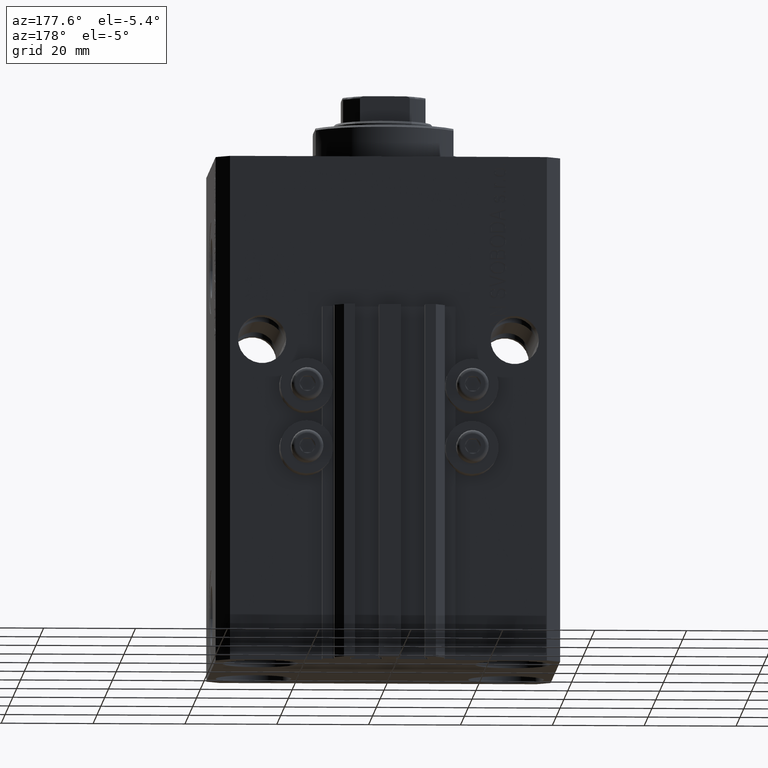
[diagram: clean part render]
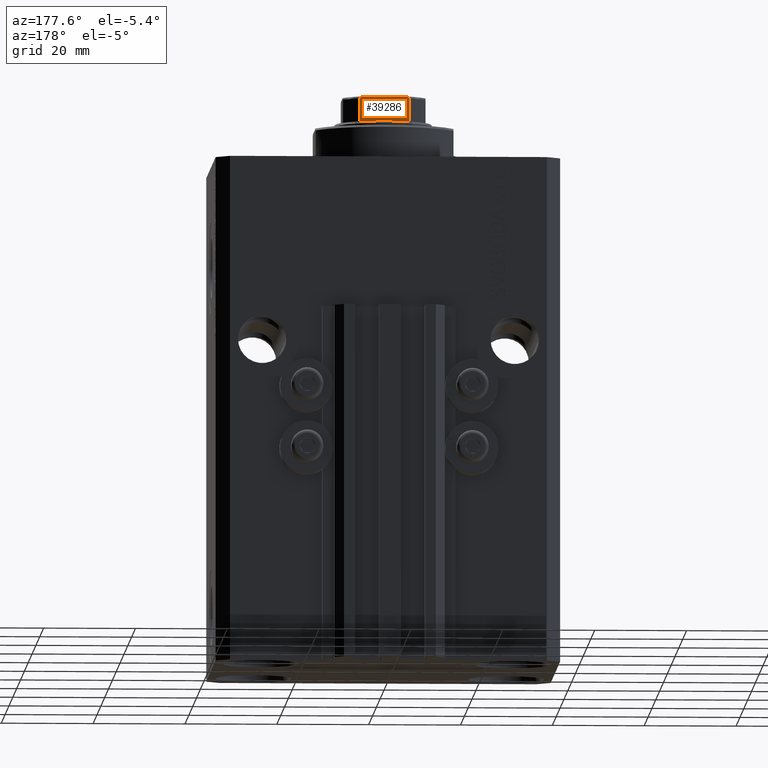
[diagram: same view with one face highlighted and labeled with its STEP entity id]
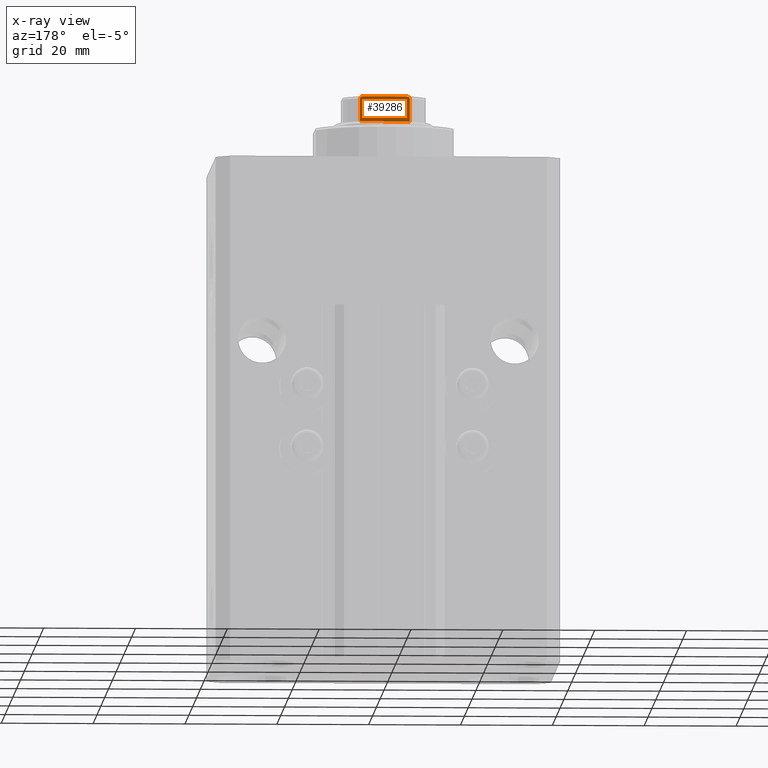
[diagram: x-ray of the same camera — body ghosted, the highlighted face saturated]
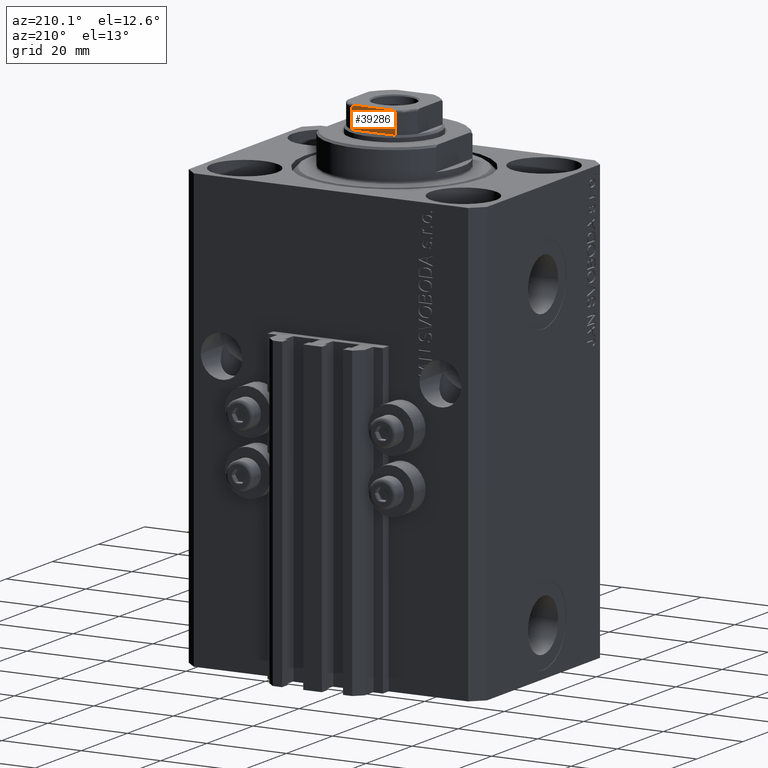
[diagram: same view with one face highlighted and labeled with its STEP entity id]
A machine part, auxiliary view. The second image highlights one B-rep face of the part: STEP entity #39286.
The next image is the same camera in x-ray: the body ghosted, the highlighted face saturated — about 0% of this face is hidden behind the body in this view.
A second angle (auxiliary view) of the same face is appended — the face is thin or edge-on in the first view.
In plain terms, the highlighted planar face has unit normal (0, -1, 0).
Its self-contained STEP definition (entity closure, byte-faithful):
#503 = CARTESIAN_POINT ( 'NONE',  ( -5.298186678102094760, 8.999999999999998224, 114.7338781215004673 ) ) ;
#1529 = PLANE ( 'NONE',  #15132 ) ;
#1992 = FACE_OUTER_BOUND ( 'NONE', #23317, .T. ) ;
#2233 = DIRECTION ( 'NONE',  ( 0.000000000000000000, -0.000000000000000000, -1.000000000000000000 ) ) ;
#2583 = CARTESIAN_POINT ( 'NONE',  ( 4.569272810556668674, 9.000000000000000000, 115.0000000000000000 ) ) ;
#2653 = VERTEX_POINT ( 'NONE', #23612 ) ;
#3301 = CARTESIAN_POINT ( 'NONE',  ( 5.297634495023393342, 8.999999999999998224, 114.7344228052779727 ) ) ;
#4390 = ORIENTED_EDGE ( 'NONE', *, *, #31023, .F. ) ;
#4440 = EDGE_CURVE ( 'NONE', #2653, #20654, #13613, .T. ) ;
#4520 = ORIENTED_EDGE ( 'NONE', *, *, #16740, .F. ) ;
#4540 = VERTEX_POINT ( 'NONE', #8076 ) ;
#5596 = ORIENTED_EDGE ( 'NONE', *, *, #29924, .T. ) ;
#6177 = CARTESIAN_POINT ( 'NONE',  ( 4.358898943540677529, 8.999999999999998224, 114.9999999999999858 ) ) ;
#6192 = VECTOR ( 'NONE', #13555, 1000.000000000000000 ) ;
#6901 = CARTESIAN_POINT ( 'NONE',  ( -5.408326913195988794, 8.999999999999998224, -0.001000000000001000089 ) ) ;
#7705 = CARTESIAN_POINT ( 'NONE',  ( -4.778533838065923689, 8.999999999999998224, 114.9778291476469860 ) ) ;
#8076 = CARTESIAN_POINT ( 'NONE',  ( 5.408326913195989682, 8.999999999999998224, 109.4999999999999858 ) ) ;
#8404 = B_SPLINE_CURVE_WITH_KNOTS ( 'NONE', 3,
 ( #6177, #2583, #38726, #25069, #9998, #3301, #43020, #9773, #32239, #32466 ),
 .UNSPECIFIED., .F., .F.,
 ( 4, 2, 2, 2, 4 ),
 ( 8.673617379884035472E-19, 0.0006221106941441109433, 0.0009331660412161594219, 0.001088693714752182740, 0.001244221388288205840 ),
 .UNSPECIFIED. ) ;
#8553 = VECTOR ( 'NONE', #13375, 1000.000000000000000 ) ;
#9773 = CARTESIAN_POINT ( 'NONE',  ( 5.390945448132526074, 8.999999999999998224, 114.6054816538970158 ) ) ;
#9998 = CARTESIAN_POINT ( 'NONE',  ( 5.173732970196573966, 9.000000000000000000, 114.8331808643798837 ) ) ;
#11279 = LINE ( 'NONE', #44043, #46850 ) ;
#11305 = LINE ( 'NONE', #12248, #47286 ) ;
#12248 = CARTESIAN_POINT ( 'NONE',  ( -9.000000000000000000, 8.999999999999998224, 114.9999999999999858 ) ) ;
#13375 = DIRECTION ( 'NONE',  ( -0.000000000000000000, -0.000000000000000000, 1.000000000000000000 ) ) ;
#13555 = DIRECTION ( 'NONE',  ( -0.000000000000000000, -0.000000000000000000, 1.000000000000000000 ) ) ;
#13613 = LINE ( 'NONE', #6901, #8553 ) ;
#15120 = CARTESIAN_POINT ( 'NONE',  ( -5.335664150027726649, 8.999999999999998224, 114.6951843380012974 ) ) ;
#15132 = AXIS2_PLACEMENT_3D ( 'NONE', #45570, #41743, #2233 ) ;
#16178 = VERTEX_POINT ( 'NONE', #31462 ) ;
#16740 = EDGE_CURVE ( 'NONE', #28639, #19571, #11305, .T. ) ;
#16921 = CARTESIAN_POINT ( 'NONE',  ( 5.408326913195989682, 8.999999999999998224, -0.001000000000001000089 ) ) ;
#18237 = CARTESIAN_POINT ( 'NONE',  ( -5.077896145217239088, 9.000000000000000000, 114.8773016776066953 ) ) ;
#19571 = VERTEX_POINT ( 'NONE', #31818 ) ;
#20654 = VERTEX_POINT ( 'NONE', #29182 ) ;
#21362 = CARTESIAN_POINT ( 'NONE',  ( -5.174818616237128133, 9.000000000000000000, 114.8325218846533460 ) ) ;
#21648 = ORIENTED_EDGE ( 'NONE', *, *, #4440, .T. ) ;
#23317 = EDGE_LOOP ( 'NONE', ( #4520, #30707, #4390, #26308, #21648, #5596 ) ) ;
#23612 = CARTESIAN_POINT ( 'NONE',  ( -5.408326913195986130, 8.999999999999998224, 109.4999999999999858 ) ) ;
#25069 = CARTESIAN_POINT ( 'NONE',  ( 5.074490744525480324, 9.000000000000000000, 114.8787200784332470 ) ) ;
#25644 = CARTESIAN_POINT ( 'NONE',  ( -4.358898943540678417, 8.999999999999998224, 114.9999999999999858 ) ) ;
#25900 = EDGE_CURVE ( 'NONE', #28639, #16178, #8404, .T. ) ;
#26105 = DIRECTION ( 'NONE',  ( -1.000000000000000000, -0.000000000000000000, -0.000000000000000000 ) ) ;
#26308 = ORIENTED_EDGE ( 'NONE', *, *, #36014, .T. ) ;
#28639 = VERTEX_POINT ( 'NONE', #43455 ) ;
#29006 = CARTESIAN_POINT ( 'NONE',  ( -4.569278586016989330, 8.999999999999996447, 115.0000000000000000 ) ) ;
#29182 = CARTESIAN_POINT ( 'NONE',  ( -5.408326913195988794, 8.999999999999998224, 114.4999999999999858 ) ) ;
#29924 = EDGE_CURVE ( 'NONE', #20654, #19571, #36152, .T. ) ;
#30707 = ORIENTED_EDGE ( 'NONE', *, *, #25900, .T. ) ;
#31023 = EDGE_CURVE ( 'NONE', #4540, #16178, #42743, .T. ) ;
#31462 = CARTESIAN_POINT ( 'NONE',  ( 5.408326913195989682, 8.999999999999998224, 114.4999999999999858 ) ) ;
#31818 = CARTESIAN_POINT ( 'NONE',  ( -4.358898943540678417, 8.999999999999998224, 114.9999999999999858 ) ) ;
#32239 = CARTESIAN_POINT ( 'NONE',  ( 5.408326913195986130, 8.999999999999998224, 114.5537434673187960 ) ) ;
#32466 = CARTESIAN_POINT ( 'NONE',  ( 5.408326913195989682, 8.999999999999998224, 114.4999999999999858 ) ) ;
#32583 = CARTESIAN_POINT ( 'NONE',  ( -5.390954572107327536, 8.999999999999996447, 114.6053628521399759 ) ) ;
#36014 = EDGE_CURVE ( 'NONE', #4540, #2653, #11279, .T. ) ;
#36152 = B_SPLINE_CURVE_WITH_KNOTS ( 'NONE', 3,
 ( #43589, #40024, #32583, #15120, #503, #21362, #18237, #7705, #29006, #25644 ),
 .UNSPECIFIED., .F., .F.,
 ( 4, 2, 2, 2, 4 ),
 ( 0.000000000000000000, 0.0001582447020888231800, 0.0003164894041776463601, 0.0006329788083552646393, 0.001265957616710501089 ),
 .UNSPECIFIED. ) ;
#38726 = CARTESIAN_POINT ( 'NONE',  ( 4.775913644518301027, 8.999999999999998224, 114.9781460743082988 ) ) ;
#39286 = ADVANCED_FACE ( 'NONE', ( #1992 ), #1529, .F. ) ;
#40024 = CARTESIAN_POINT ( 'NONE',  ( -5.408326913195988794, 8.999999999999998224, 114.5535720727335303 ) ) ;
#41443 = DIRECTION ( 'NONE',  ( -1.000000000000000000, -0.000000000000000000, -0.000000000000000000 ) ) ;
#41743 = DIRECTION ( 'NONE',  ( 0.000000000000000000, -1.000000000000000000, 0.000000000000000000 ) ) ;
#42743 = LINE ( 'NONE', #16921, #6192 ) ;
#43020 = CARTESIAN_POINT ( 'NONE',  ( 5.335288102212754069, 8.999999999999996447, 114.6956905402761890 ) ) ;
#43455 = CARTESIAN_POINT ( 'NONE',  ( 4.358898943540677529, 8.999999999999998224, 114.9999999999999858 ) ) ;
#43589 = CARTESIAN_POINT ( 'NONE',  ( -5.408326913195988794, 8.999999999999998224, 114.4999999999999858 ) ) ;
#44043 = CARTESIAN_POINT ( 'NONE',  ( -9.000000000000000000, 8.999999999999998224, 109.4999999999999858 ) ) ;
#45570 = CARTESIAN_POINT ( 'NONE',  ( -9.000000000000000000, 8.999999999999998224, 114.9999999999999858 ) ) ;
#46850 = VECTOR ( 'NONE', #26105, 1000.000000000000000 ) ;
#47286 = VECTOR ( 'NONE', #41443, 1000.000000000000000 ) ;